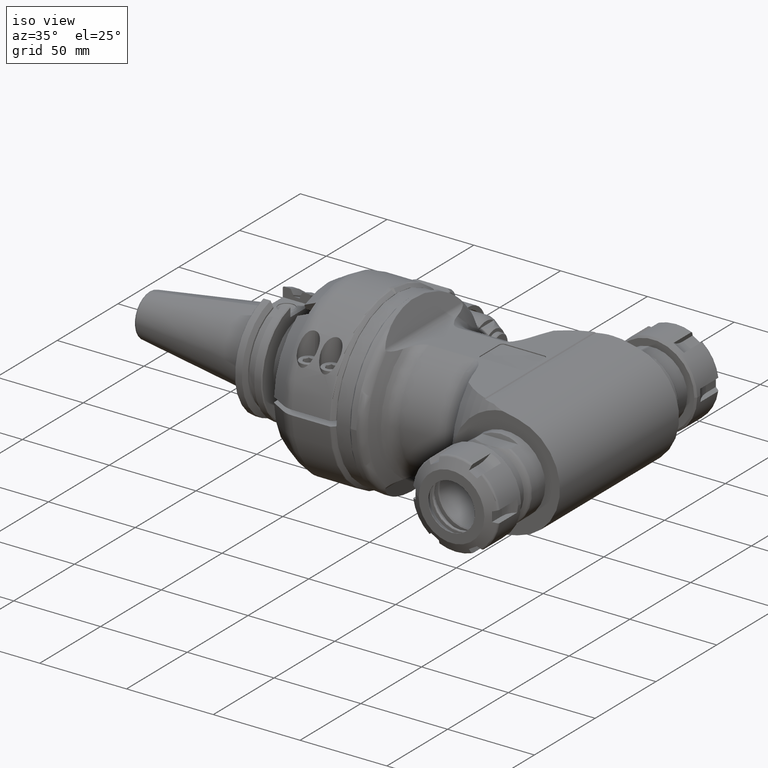
[diagram: clean part render]
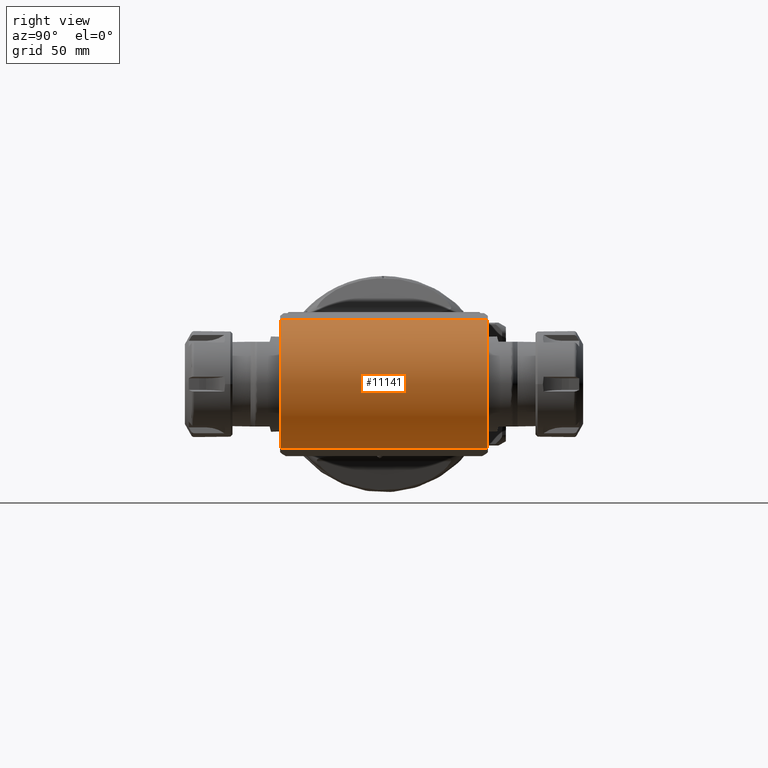
[diagram: tour spotlight — one face highlighted and labeled with its STEP entity id]
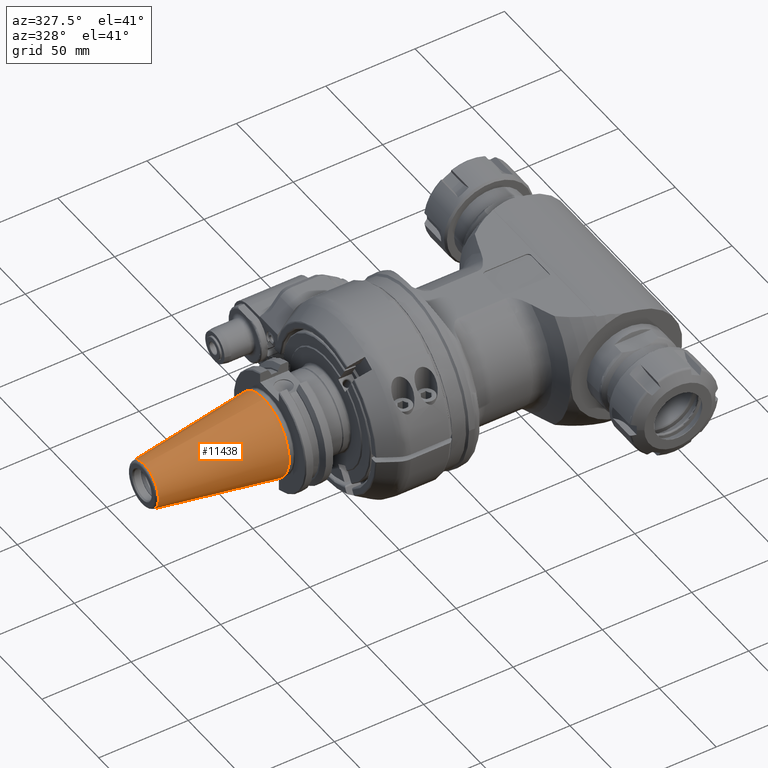
[diagram: tour spotlight — one face highlighted and labeled with its STEP entity id]
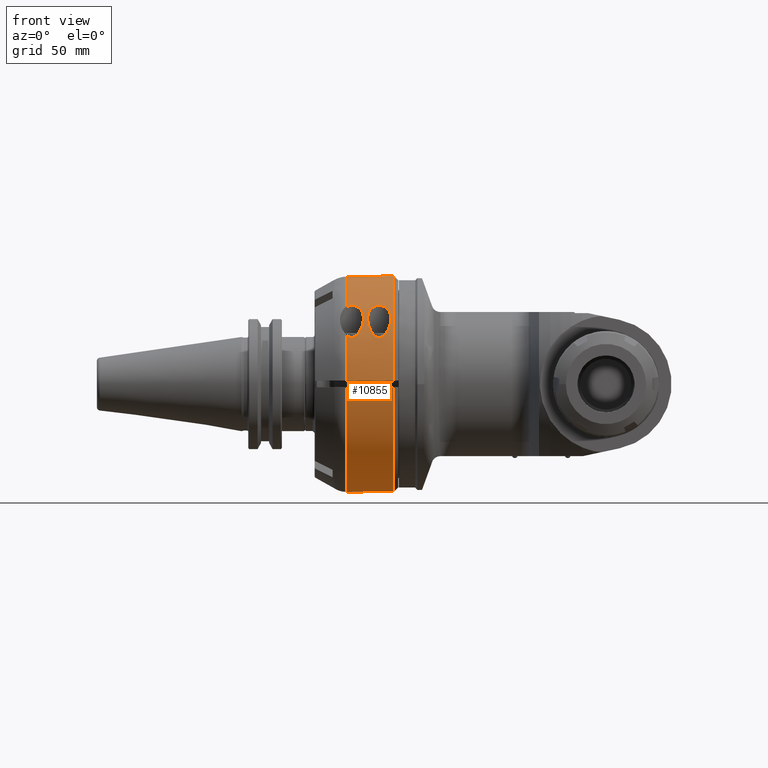
[diagram: tour spotlight — one face highlighted and labeled with its STEP entity id]
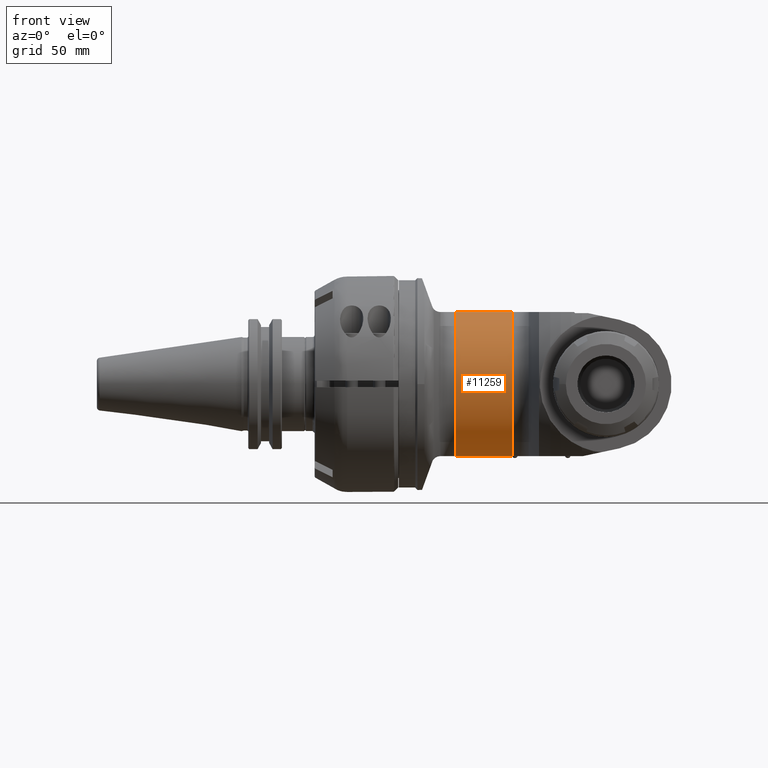
[diagram: tour spotlight — one face highlighted and labeled with its STEP entity id]
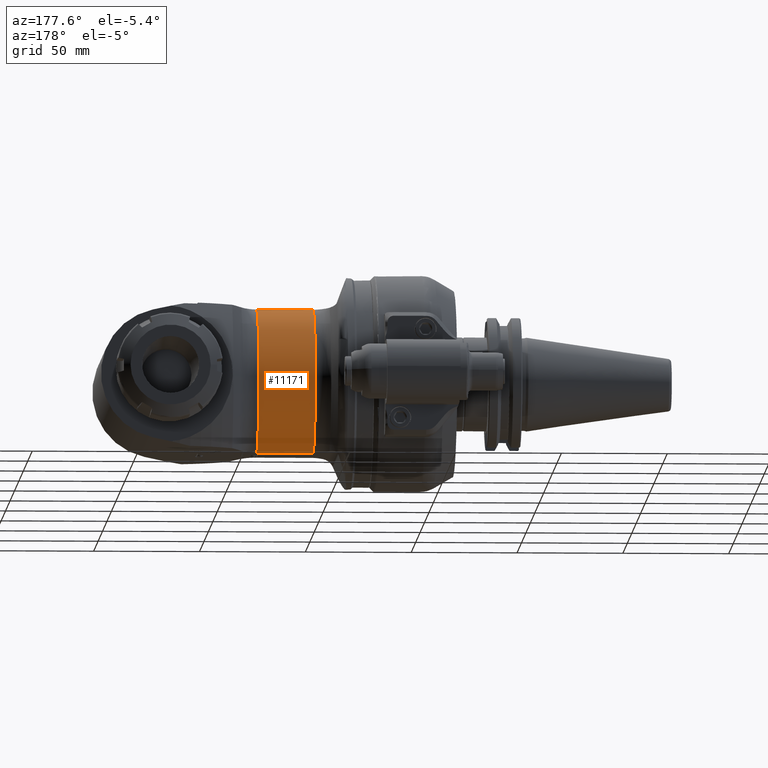
[diagram: tour spotlight — one face highlighted and labeled with its STEP entity id]
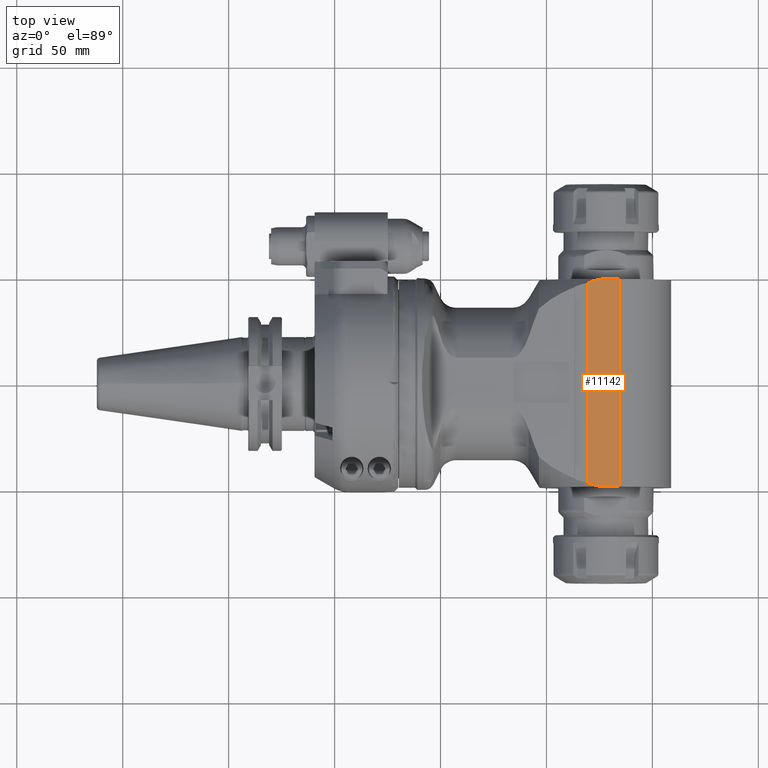
[diagram: tour spotlight — one face highlighted and labeled with its STEP entity id]
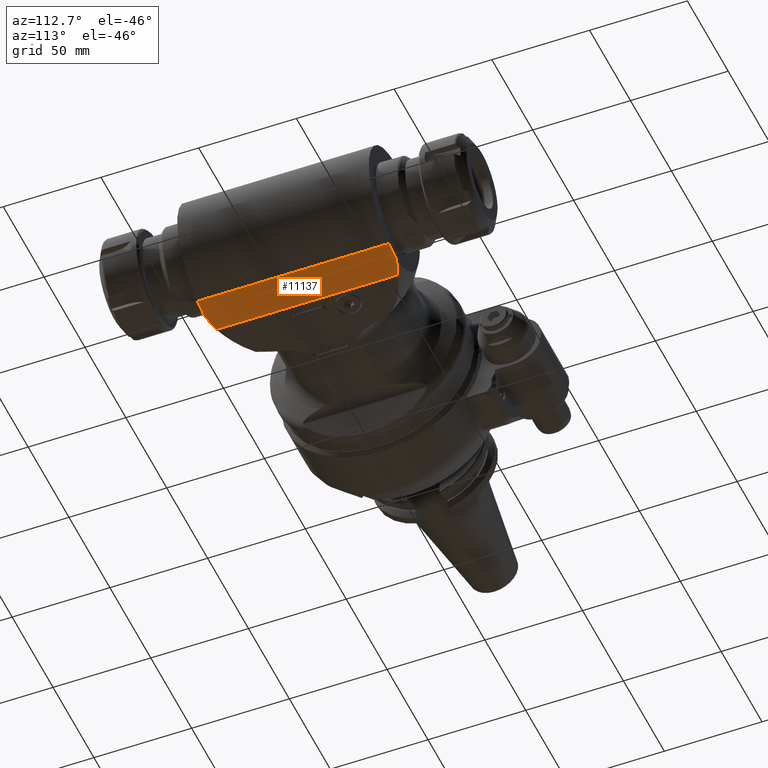
[diagram: tour spotlight — one face highlighted and labeled with its STEP entity id]
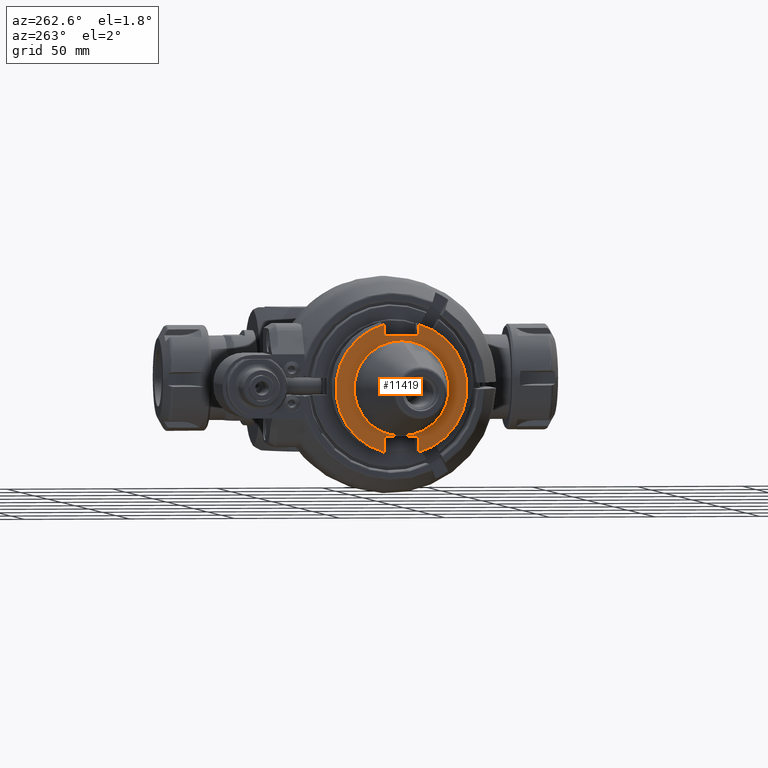
[diagram: tour spotlight — one face highlighted and labeled with its STEP entity id]
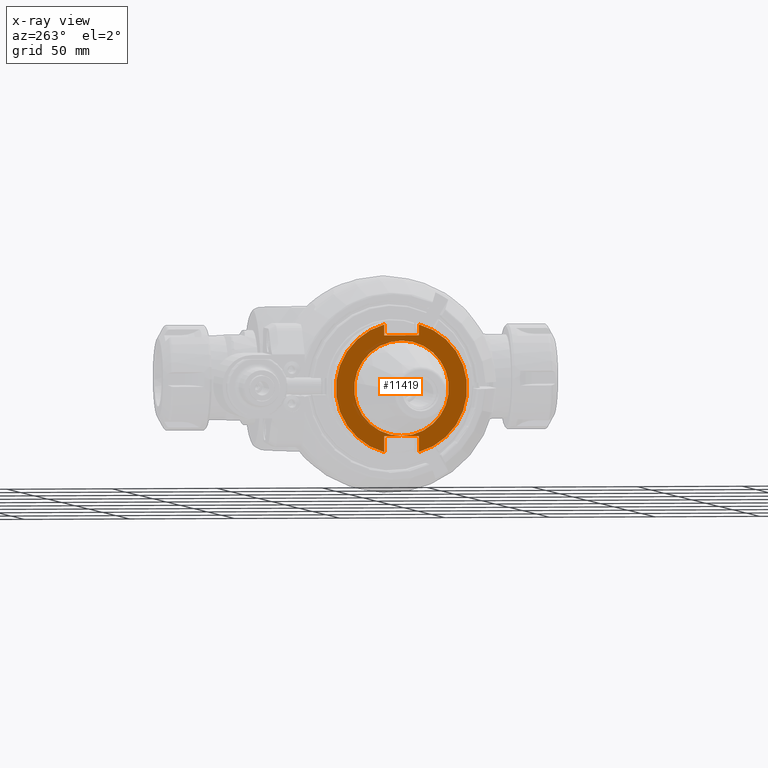
[diagram: x-ray of the same camera — body ghosted, this tour face saturated]
A machine part: a face-by-face anatomy tour. The part has 669 B-rep faces; the first image is the clean iso view, then the 8 largest visible faces are spotlighted one at a time (largest first), each with its STEP entity span.

Face 1 — right view, entity #11141. In plain terms, the highlighted cylindrical surface (partial cylindrical patch) has radius 31 mm, axis along (0, 1, 0).
Definition (entity closure, byte-faithful):
#982=LINE('',#21088,#1656);
#985=LINE('',#21253,#1659);
#1656=VECTOR('',#14554,98.);
#1659=VECTOR('',#14573,98.);
#2038=CYLINDRICAL_SURFACE('',#12184,31.);
#2576=FACE_OUTER_BOUND('',#3293,.T.);
#3293=EDGE_LOOP('',(#8794,#8795,#8796,#8797));
#4016=CIRCLE('',#12182,31.);
#4018=CIRCLE('',#12185,31.);
#4882=VERTEX_POINT('',#21085);
#4883=VERTEX_POINT('',#21087);
#4888=VERTEX_POINT('',#21116);
#4899=VERTEX_POINT('',#21252);
#6279=EDGE_CURVE('',#4883,#4882,#982,.T.);
#6287=EDGE_CURVE('',#4883,#4888,#4016,.T.);
#6299=EDGE_CURVE('',#4899,#4888,#985,.T.);
#6300=EDGE_CURVE('',#4899,#4882,#4018,.T.);
#8794=ORIENTED_EDGE('',*,*,#6299,.T.);
#8795=ORIENTED_EDGE('',*,*,#6287,.F.);
#8796=ORIENTED_EDGE('',*,*,#6279,.T.);
#8797=ORIENTED_EDGE('',*,*,#6300,.F.);
#11141=ADVANCED_FACE('',(#2576),#2038,.T.);
#12182=AXIS2_PLACEMENT_3D('',#21117,#14566,#14567);
#12184=AXIS2_PLACEMENT_3D('',#21251,#14571,#14572);
#12185=AXIS2_PLACEMENT_3D('',#21254,#14574,#14575);
#14554=DIRECTION('',(2.157729777165E-13,1.,5.289193119765E-14));
#14566=DIRECTION('center_axis',(0.,-1.,0.));
#14567=DIRECTION('ref_axis',(0.207911690817109,0.,-0.978147600733944));
#14571=DIRECTION('center_axis',(0.,1.,0.));
#14572=DIRECTION('ref_axis',(1.,0.,0.));
#14573=DIRECTION('',(0.,-1.,0.));
#14574=DIRECTION('center_axis',(0.,1.,0.));
#14575=DIRECTION('ref_axis',(0.207911690817799,0.,0.978147600733797));
#21085=CARTESIAN_POINT('',(284.5083594154,49.,-30.32257562275));
#21087=CARTESIAN_POINT('',(284.5083594153,-49.,-30.32257562275));
#21088=CARTESIAN_POINT('',(284.5083594153,-49.,-30.32257562275));
#21116=CARTESIAN_POINT('',(284.5083594154,-49.,30.32257562275));
#21117=CARTESIAN_POINT('Origin',(278.063097,-49.,0.));
#21251=CARTESIAN_POINT('Origin',(278.063097,49.,0.));
#21252=CARTESIAN_POINT('',(284.5083594154,49.,30.32257562275));
#21253=CARTESIAN_POINT('',(284.5083594154,49.,30.32257562275));
#21254=CARTESIAN_POINT('Origin',(278.063097,49.,0.));

Face 2 — auxiliary view, entity #11438. In plain terms, the highlighted conical surface has half-angle 8.297 deg.
Definition (entity closure, byte-faithful):
#591=CONICAL_SURFACE('',#12741,17.34203190906,0.144812411498922);
#1221=LINE('',#28803,#1895);
#1895=VECTOR('',#15923,17.34203190906);
#2873=FACE_OUTER_BOUND('',#3616,.T.);
#3616=EDGE_LOOP('',(#10299,#10300,#10301,#10302,#10303));
#4237=CIRCLE('',#12740,22.225);
#4238=CIRCLE('',#12742,12.45906381812);
#4239=CIRCLE('',#12743,12.45906381812);
#5329=VERTEX_POINT('',#28798);
#5330=VERTEX_POINT('',#28802);
#5331=VERTEX_POINT('',#28804);
#6998=EDGE_CURVE('',#5329,#5329,#4237,.T.);
#7000=EDGE_CURVE('',#5329,#5330,#1221,.T.);
#7001=EDGE_CURVE('',#5331,#5330,#4238,.T.);
#7002=EDGE_CURVE('',#5330,#5331,#4239,.T.);
#10299=ORIENTED_EDGE('',*,*,#6998,.F.);
#10300=ORIENTED_EDGE('',*,*,#7000,.T.);
#10301=ORIENTED_EDGE('',*,*,#7001,.F.);
#10302=ORIENTED_EDGE('',*,*,#7002,.F.);
#10303=ORIENTED_EDGE('',*,*,#7000,.F.);
#11438=ADVANCED_FACE('',(#2873),#591,.T.);
#12740=AXIS2_PLACEMENT_3D('',#28799,#15918,#15919);
#12741=AXIS2_PLACEMENT_3D('',#28801,#15921,#15922);
#12742=AXIS2_PLACEMENT_3D('',#28805,#15924,#15925);
#12743=AXIS2_PLACEMENT_3D('',#28806,#15926,#15927);
#15918=DIRECTION('center_axis',(1.,0.,0.));
#15919=DIRECTION('ref_axis',(0.,0.,1.));
#15921=DIRECTION('center_axis',(1.,0.,0.));
#15922=DIRECTION('ref_axis',(0.,0.,-1.));
#15923=DIRECTION('',(-0.98953299358046,1.76724869581176E-17,-0.144306807239621));
#15924=DIRECTION('center_axis',(-1.,0.,0.));
#15925=DIRECTION('ref_axis',(0.,0.,1.));
#15926=DIRECTION('center_axis',(-1.,0.,0.));
#15927=DIRECTION('ref_axis',(0.,0.,1.));
#28798=CARTESIAN_POINT('',(106.063097,2.72177751110521E-15,22.2250000000017));
#28799=CARTESIAN_POINT('Origin',(106.063097,0.,0.));
#28801=CARTESIAN_POINT('Origin',(72.57986689457,0.,0.));
#28802=CARTESIAN_POINT('',(39.09663678914,0.,12.45906381812));
#28803=CARTESIAN_POINT('',(72.57986689457,-2.12378638681416E-15,17.34203190906));
#28804=CARTESIAN_POINT('',(39.09663678914,1.52579526252333E-15,-12.45906381812));
#28805=CARTESIAN_POINT('Origin',(39.09663678914,0.,0.));
#28806=CARTESIAN_POINT('Origin',(39.09663678914,0.,0.));

Face 3 — front view, entity #10855. In plain terms, the highlighted cylindrical surface (partial cylindrical patch) has radius 51 mm, axis along (1, 0, 0).
Definition (entity closure, byte-faithful):
#51=B_SPLINE_CURVE_WITH_KNOTS('',3,(#16694,#16695,#16696,#16697,#16698,
#16699),.UNSPECIFIED.,.F.,.F.,(4,2,4),(-0.220144328878826,-0.201175489980687,
0.),.UNSPECIFIED.);
#52=B_SPLINE_CURVE_WITH_KNOTS('',3,(#16701,#16702,#16703,#16704,#16705,
#16706,#16707,#16708,#16709,#16710,#16711,#16712,#16713,#16714,#16715,#16716,
#16717,#16718,#16719,#16720,#16721,#16722,#16723,#16724,#16725,#16726),
 .UNSPECIFIED.,.F.,.F.,(4,2,2,2,2,2,2,2,2,2,2,2,4),(0.,0.201175489980686,
0.402350979961373,0.726790310303928,1.05122964064648,1.4474368744455,1.84364410824452,
2.06341028648597,2.17329337560669,2.28317646472742,2.39305955384814,2.50294264296886,
2.52975105248747),.UNSPECIFIED.);
#53=B_SPLINE_CURVE_WITH_KNOTS('',3,(#16737,#16738,#16739,#16740,#16741,
#16742,#16743,#16744,#16745,#16746,#16747,#16748,#16749,#16750,#16751,#16752,
#16753,#16754,#16755,#16756,#16757,#16758,#16759,#16760,#16761,#16762,#16763,
#16764,#16765,#16766,#16767,#16768,#16769,#16770,#16771,#16772,#16773,#16774),
 .UNSPECIFIED.,.T.,.F.,(4,2,2,2,2,2,2,2,2,2,2,2,2,2,2,2,2,2,4),(-4.56635292945483,
-4.45646984033411,-4.34658675121339,-4.12682057297194,-3.73061333917292,
-3.3344061053739,-3.00996677503134,-2.68552744468879,-2.4843519547081,-2.28317646472742,
-2.08200097474673,-1.88082548476604,-1.55638615442349,-1.23194682408093,
-0.835739590281914,-0.439532356482894,-0.219766178241447,-0.109883089120723,
0.),.UNSPECIFIED.);
#303=ELLIPSE('',#11620,144.249783362042,51.);
#304=ELLIPSE('',#11621,144.249783362042,51.);
#634=LINE('',#16377,#1308);
#644=LINE('',#16447,#1318);
#660=LINE('',#16627,#1334);
#661=LINE('',#16688,#1335);
#662=LINE('',#16690,#1336);
#663=LINE('',#16735,#1337);
#1308=VECTOR('',#12980,21.74606325158);
#1318=VECTOR('',#13028,21.74606856517);
#1334=VECTOR('',#13100,18.52539489666);
#1335=VECTOR('',#13113,0.6348591411298);
#1336=VECTOR('',#13114,18.52539489666);
#1337=VECTOR('',#13127,0.6348591411298);
#1959=CYLINDRICAL_SURFACE('',#11613,51.);
#2182=FACE_BOUND('',#2969,.T.);
#2290=FACE_OUTER_BOUND('',#2968,.T.);
#2968=EDGE_LOOP('',(#7325,#7326,#7327,#7328,#7329,#7330,#7331,#7332,#7333,
#7334,#7335,#7336,#7337,#7338,#7339,#7340,#7341,#7342));
#2969=EDGE_LOOP('',(#7343));
#3742=CIRCLE('',#11612,51.);
#3743=CIRCLE('',#11614,51.);
#3744=CIRCLE('',#11615,51.);
#3745=CIRCLE('',#11616,51.);
#3746=CIRCLE('',#11617,51.);
#3747=CIRCLE('',#11618,51.);
#3748=CIRCLE('',#11619,51.);
#3749=CIRCLE('',#11622,51.);
#4349=VERTEX_POINT('',#16367);
#4350=VERTEX_POINT('',#16376);
#4368=VERTEX_POINT('',#16437);
#4369=VERTEX_POINT('',#16446);
#4403=VERTEX_POINT('',#16624);
#4404=VERTEX_POINT('',#16626);
#4405=VERTEX_POINT('',#16680);
#4406=VERTEX_POINT('',#16681);
#4407=VERTEX_POINT('',#16683);
#4408=VERTEX_POINT('',#16685);
#4409=VERTEX_POINT('',#16687);
#4410=VERTEX_POINT('',#16689);
#4411=VERTEX_POINT('',#16691);
#4412=VERTEX_POINT('',#16693);
#4413=VERTEX_POINT('',#16700);
#4414=VERTEX_POINT('',#16728);
#4415=VERTEX_POINT('',#16730);
#4416=VERTEX_POINT('',#16732);
#4417=VERTEX_POINT('',#16736);
#5477=EDGE_CURVE('',#4350,#4349,#634,.T.);
#5504=EDGE_CURVE('',#4369,#4368,#644,.T.);
#5547=EDGE_CURVE('',#4404,#4403,#660,.T.);
#5549=EDGE_CURVE('',#4404,#4349,#3742,.T.);
#5550=EDGE_CURVE('',#4405,#4406,#3743,.T.);
#5551=EDGE_CURVE('',#4407,#4405,#3744,.T.);
#5552=EDGE_CURVE('',#4408,#4407,#3745,.T.);
#5553=EDGE_CURVE('',#4408,#4409,#661,.T.);
#5554=EDGE_CURVE('',#4410,#4409,#662,.T.);
#5555=EDGE_CURVE('',#4411,#4410,#3746,.T.);
#5556=EDGE_CURVE('',#4411,#4412,#51,.T.);
#5557=EDGE_CURVE('',#4412,#4413,#52,.T.);
#5558=EDGE_CURVE('',#4369,#4413,#3747,.T.);
#5559=EDGE_CURVE('',#4414,#4368,#3748,.T.);
#5560=EDGE_CURVE('',#4415,#4414,#303,.T.);
#5561=EDGE_CURVE('',#4416,#4415,#304,.T.);
#5562=EDGE_CURVE('',#4350,#4416,#3749,.T.);
#5563=EDGE_CURVE('',#4403,#4406,#663,.T.);
#5564=EDGE_CURVE('',#4417,#4417,#53,.T.);
#7325=ORIENTED_EDGE('',*,*,#5550,.F.);
#7326=ORIENTED_EDGE('',*,*,#5551,.F.);
#7327=ORIENTED_EDGE('',*,*,#5552,.F.);
#7328=ORIENTED_EDGE('',*,*,#5553,.T.);
#7329=ORIENTED_EDGE('',*,*,#5554,.F.);
#7330=ORIENTED_EDGE('',*,*,#5555,.F.);
#7331=ORIENTED_EDGE('',*,*,#5556,.T.);
#7332=ORIENTED_EDGE('',*,*,#5557,.T.);
#7333=ORIENTED_EDGE('',*,*,#5558,.F.);
#7334=ORIENTED_EDGE('',*,*,#5504,.T.);
#7335=ORIENTED_EDGE('',*,*,#5559,.F.);
#7336=ORIENTED_EDGE('',*,*,#5560,.F.);
#7337=ORIENTED_EDGE('',*,*,#5561,.F.);
#7338=ORIENTED_EDGE('',*,*,#5562,.F.);
#7339=ORIENTED_EDGE('',*,*,#5477,.T.);
#7340=ORIENTED_EDGE('',*,*,#5549,.F.);
#7341=ORIENTED_EDGE('',*,*,#5547,.T.);
#7342=ORIENTED_EDGE('',*,*,#5563,.T.);
#7343=ORIENTED_EDGE('',*,*,#5564,.T.);
#10855=ADVANCED_FACE('',(#2290,#2182),#1959,.T.);
#11612=AXIS2_PLACEMENT_3D('',#16678,#13103,#13104);
#11613=AXIS2_PLACEMENT_3D('',#16679,#13105,#13106);
#11614=AXIS2_PLACEMENT_3D('',#16682,#13107,#13108);
#11615=AXIS2_PLACEMENT_3D('',#16684,#13109,#13110);
#11616=AXIS2_PLACEMENT_3D('',#16686,#13111,#13112);
#11617=AXIS2_PLACEMENT_3D('',#16692,#13115,#13116);
#11618=AXIS2_PLACEMENT_3D('',#16727,#13117,#13118);
#11619=AXIS2_PLACEMENT_3D('',#16729,#13119,#13120);
#11620=AXIS2_PLACEMENT_3D('',#16731,#13121,#13122);
#11621=AXIS2_PLACEMENT_3D('',#16733,#13123,#13124);
#11622=AXIS2_PLACEMENT_3D('',#16734,#13125,#13126);
#12980=DIRECTION('',(-1.,-1.462479987387E-11,4.970251645951E-10));
#13028=DIRECTION('',(1.,3.747115976057E-11,1.273469652131E-9));
#13100=DIRECTION('',(1.,-3.835506555859E-14,-5.561484505995E-14));
#13103=DIRECTION('center_axis',(-1.,0.,0.));
#13104=DIRECTION('ref_axis',(0.,0.823529411764684,-0.567273574176089));
#13105=DIRECTION('center_axis',(1.,0.,0.));
#13106=DIRECTION('ref_axis',(0.,1.,1.4663902280623E-10));
#13107=DIRECTION('center_axis',(-1.,0.,0.));
#13108=DIRECTION('ref_axis',(0.,0.835809470037146,-0.54901960784313));
#13109=DIRECTION('center_axis',(-1.,0.,0.));
#13110=DIRECTION('ref_axis',(0.,0.835809470037146,0.54901960784313));
#13111=DIRECTION('center_axis',(-1.,0.,0.));
#13112=DIRECTION('ref_axis',(0.,0.823529411764684,0.567273574176089));
#13113=DIRECTION('',(-1.,-2.238426415332E-14,7.27488584983E-14));
#13114=DIRECTION('',(1.,-3.7971514903E-14,5.561484505995E-14));
#13115=DIRECTION('center_axis',(-1.,0.,0.));
#13116=DIRECTION('ref_axis',(0.,-0.694941301235422,0.719066469693323));
#13117=DIRECTION('center_axis',(-1.,0.,0.));
#13118=DIRECTION('ref_axis',(0.,-0.999567380468613,0.0294117647058804));
#13119=DIRECTION('center_axis',(1.,0.,0.));
#13120=DIRECTION('ref_axis',(0.,-0.0186331132687895,0.999826388474475));
#13121=DIRECTION('center_axis',(0.353553390593307,0.707106781186515,0.612372435695813));
#13122=DIRECTION('ref_axis',(0.935414346693472,-0.267261241912441,-0.23145502494317));
#13123=DIRECTION('center_axis',(0.353553390593307,-0.707106781186515,0.612372435695813));
#13124=DIRECTION('ref_axis',(-0.935414346693472,-0.267261241912441,0.23145502494317));
#13125=DIRECTION('center_axis',(1.,0.,0.));
#13126=DIRECTION('ref_axis',(0.,1.,0.));
#13127=DIRECTION('',(1.,-2.238426415332E-14,-1.119213207666E-14));
#16367=CARTESIAN_POINT('',(155.902842951806,-50.9779364044794,-1.49999998023586));
#16376=CARTESIAN_POINT('',(177.648883445127,-50.9779364043204,-1.49999998564002));
#16377=CARTESIAN_POINT('',(177.6488908532,-50.97793640474,-1.49999997128));
#16437=CARTESIAN_POINT('',(177.648883444621,-50.9779364042926,1.49999998660699));
#16446=CARTESIAN_POINT('',(155.9028429622,-50.9779364046901,1.49999997309681));
#16447=CARTESIAN_POINT('',(155.9028217902,-50.9779364055,1.499999945521));
#16624=CARTESIAN_POINT('',(174.4282378589,42.,-28.93095228298));
#16626=CARTESIAN_POINT('',(155.9028429622,42.,-28.93095228298));
#16627=CARTESIAN_POINT('',(155.9028429622,42.,-28.93095228298));
#16678=CARTESIAN_POINT('Origin',(155.9028429622,0.,0.));
#16679=CARTESIAN_POINT('Origin',(149.063097,0.,0.));
#16680=CARTESIAN_POINT('',(175.063097,42.62628297189,-28.));
#16681=CARTESIAN_POINT('',(175.063097,42.,-28.93095228298));
#16682=CARTESIAN_POINT('Origin',(175.063097,0.,0.));
#16683=CARTESIAN_POINT('',(175.063097,42.62628297189,28.));
#16684=CARTESIAN_POINT('Origin',(175.063097,0.,0.));
#16685=CARTESIAN_POINT('',(175.063097,42.,28.93095228298));
#16686=CARTESIAN_POINT('Origin',(175.063097,0.,0.));
#16687=CARTESIAN_POINT('',(174.4282378589,42.,28.93095228298));
#16688=CARTESIAN_POINT('',(175.063097,42.,28.93095228298));
#16689=CARTESIAN_POINT('',(155.9028429622,42.,28.93095228298));
#16690=CARTESIAN_POINT('',(155.9028429622,42.,28.93095228298));
#16691=CARTESIAN_POINT('',(155.9028429621,-35.44200636301,36.67238995435));
#16692=CARTESIAN_POINT('Origin',(155.9028429622,0.,0.));
#16693=CARTESIAN_POINT('',(158.063097,-35.0000002827,37.094473715245));
#16694=CARTESIAN_POINT('Ctrl Pts',(155.902842962091,-35.4420063630023,36.6723899543635));
#16695=CARTESIAN_POINT('Ctrl Pts',(155.960066241056,-35.4175664721268,36.6960098703003));
#16696=CARTESIAN_POINT('Ctrl Pts',(156.017968423946,-35.3939854762379,36.7187524665202));
#16697=CARTESIAN_POINT('Ctrl Pts',(156.697134117794,-35.1309085087689,36.9720249281091));
#16698=CARTESIAN_POINT('Ctrl Pts',(157.392512033398,-35.0000002827,37.094473715245));
#16699=CARTESIAN_POINT('Ctrl Pts',(158.063097,-35.0000002827,37.094473715245));
#16700=CARTESIAN_POINT('',(155.9028429622,-45.55799420242,22.92311419183));
#16701=CARTESIAN_POINT('Ctrl Pts',(158.063097,-35.0000002827,37.094473715245));
#16702=CARTESIAN_POINT('Ctrl Pts',(158.733681966602,-35.0000002827,37.094473715245));
#16703=CARTESIAN_POINT('Ctrl Pts',(159.429059882206,-35.1309085087689,36.9720249281091));
#16704=CARTESIAN_POINT('Ctrl Pts',(160.670350011584,-35.611726144206,36.509126684777));
#16705=CARTESIAN_POINT('Ctrl Pts',(161.217088242085,-35.9595700839234,36.1687494919773));
#16706=CARTESIAN_POINT('Ctrl Pts',(162.327305140609,-36.9109847334653,35.2033968586434));
#16707=CARTESIAN_POINT('Ctrl Pts',(162.82219848899,-37.6305186458188,34.4409934800642));
#16708=CARTESIAN_POINT('Ctrl Pts',(163.440260886259,-39.0967633186736,32.7670730175023));
#16709=CARTESIAN_POINT('Ctrl Pts',(163.563097,-39.8427250661917,31.8547771083538));
#16710=CARTESIAN_POINT('Ctrl Pts',(163.563097,-41.3026686740521,29.9471832487812));
#16711=CARTESIAN_POINT('Ctrl Pts',(163.381737543995,-42.1275628033903,28.778013547493));
#16712=CARTESIAN_POINT('Ctrl Pts',(162.665931905328,-43.6226298537565,26.456979520871));
#16713=CARTESIAN_POINT('Ctrl Pts',(162.139142507435,-44.2943690865695,25.3037695427295));
#16714=CARTESIAN_POINT('Ctrl Pts',(161.070663138843,-45.1302050030023,23.7624895598246));
#16715=CARTESIAN_POINT('Ctrl Pts',(160.588286549568,-45.4238805293447,23.1928172782629));
#16716=CARTESIAN_POINT('Ctrl Pts',(159.734148909462,-45.7488459255632,22.5411184273515));
#16717=CARTESIAN_POINT('Ctrl Pts',(159.428008510223,-45.8382767855729,22.3578474169696));
#16718=CARTESIAN_POINT('Ctrl Pts',(158.775593272837,-45.9637780827712,22.0986788135919));
#16719=CARTESIAN_POINT('Ctrl Pts',(158.429373963736,-46.0000002827,22.0227149550549));
#16720=CARTESIAN_POINT('Ctrl Pts',(157.696820036264,-46.0000002827,22.0227149550549));
#16721=CARTESIAN_POINT('Ctrl Pts',(157.350600727163,-45.9637780827712,22.0986788135918));
#16722=CARTESIAN_POINT('Ctrl Pts',(156.698185489777,-45.8382767855729,22.3578474169696));
#16723=CARTESIAN_POINT('Ctrl Pts',(156.392045090538,-45.7488459255632,22.5411184273514));
#16724=CARTESIAN_POINT('Ctrl Pts',(156.037870622005,-45.6140966286196,22.8113501597179));
#16725=CARTESIAN_POINT('Ctrl Pts',(155.969697861046,-45.5865477292915,22.8663661688304));
#16726=CARTESIAN_POINT('Ctrl Pts',(155.902842962179,-45.5579942024351,22.9231141918128));
#16727=CARTESIAN_POINT('Origin',(155.9028429622,0.,0.));
#16728=CARTESIAN_POINT('',(177.6488834376,-0.9502887767138,50.9911458122));
#16729=CARTESIAN_POINT('Origin',(177.6488834376,0.,0.));
#16730=CARTESIAN_POINT('',(175.7329699811,0.,51.));
#16731=CARTESIAN_POINT('Origin',(264.067561167047,0.,0.));
#16732=CARTESIAN_POINT('',(177.6488834376,0.9502887767115,50.9911458122));
#16733=CARTESIAN_POINT('Origin',(264.067561167129,0.,0.));
#16734=CARTESIAN_POINT('Origin',(177.6488834376,0.,0.));
#16735=CARTESIAN_POINT('',(174.4282378589,42.,-28.93095228298));
#16736=CARTESIAN_POINT('',(165.563097,-40.5000002827,30.99596711028));
#16737=CARTESIAN_POINT('Ctrl Pts',(171.063097,-46.0000002827,22.0227149550549));
#16738=CARTESIAN_POINT('Ctrl Pts',(170.696820036264,-46.0000002827,22.0227149550549));
#16739=CARTESIAN_POINT('Ctrl Pts',(170.350600727163,-45.9637780827712,22.0986788135919));
#16740=CARTESIAN_POINT('Ctrl Pts',(169.698185489777,-45.8382767855729,22.3578474169696));
#16741=CARTESIAN_POINT('Ctrl Pts',(169.392045090538,-45.7488459255632,22.5411184273515));
#16742=CARTESIAN_POINT('Ctrl Pts',(168.537907450432,-45.4238805293447,23.1928172782629));
#16743=CARTESIAN_POINT('Ctrl Pts',(168.055530861157,-45.1302050030023,23.7624895598246));
#16744=CARTESIAN_POINT('Ctrl Pts',(166.987051492565,-44.2943690865695,25.3037695427295));
#16745=CARTESIAN_POINT('Ctrl Pts',(166.460262094672,-43.6226298537565,26.456979520871));
#16746=CARTESIAN_POINT('Ctrl Pts',(165.744456456005,-42.1275628033903,28.778013547493));
#16747=CARTESIAN_POINT('Ctrl Pts',(165.563097,-41.3026686740521,29.9471832487812));
#16748=CARTESIAN_POINT('Ctrl Pts',(165.563097,-39.8427250661917,31.8547771083538));
#16749=CARTESIAN_POINT('Ctrl Pts',(165.685933113741,-39.0967633186736,32.7670730175023));
#16750=CARTESIAN_POINT('Ctrl Pts',(166.30399551101,-37.6305186458188,34.4409934800642));
#16751=CARTESIAN_POINT('Ctrl Pts',(166.798888859391,-36.9109847334653,35.2033968586434));
#16752=CARTESIAN_POINT('Ctrl Pts',(167.909105757915,-35.9595700839234,36.1687494919773));
#16753=CARTESIAN_POINT('Ctrl Pts',(168.455843988416,-35.611726144206,36.509126684777));
#16754=CARTESIAN_POINT('Ctrl Pts',(169.697134117794,-35.1309085087689,36.9720249281091));
#16755=CARTESIAN_POINT('Ctrl Pts',(170.392512033398,-35.0000002827,37.094473715245));
#16756=CARTESIAN_POINT('Ctrl Pts',(171.733681966602,-35.0000002827,37.094473715245));
#16757=CARTESIAN_POINT('Ctrl Pts',(172.429059882206,-35.1309085087689,36.9720249281091));
#16758=CARTESIAN_POINT('Ctrl Pts',(173.670350011584,-35.611726144206,36.509126684777));
#16759=CARTESIAN_POINT('Ctrl Pts',(174.217088242085,-35.9595700839234,36.1687494919773));
#16760=CARTESIAN_POINT('Ctrl Pts',(175.327305140609,-36.9109847334653,35.2033968586434));
#16761=CARTESIAN_POINT('Ctrl Pts',(175.82219848899,-37.6305186458188,34.4409934800642));
#16762=CARTESIAN_POINT('Ctrl Pts',(176.440260886259,-39.0967633186736,32.7670730175023));
#16763=CARTESIAN_POINT('Ctrl Pts',(176.563097,-39.8427250661916,31.8547771083538));
#16764=CARTESIAN_POINT('Ctrl Pts',(176.563097,-41.3026686740521,29.9471832487812));
#16765=CARTESIAN_POINT('Ctrl Pts',(176.381737543995,-42.1275628033903,28.778013547493));
#16766=CARTESIAN_POINT('Ctrl Pts',(175.665931905328,-43.6226298537565,26.456979520871));
#16767=CARTESIAN_POINT('Ctrl Pts',(175.139142507435,-44.2943690865695,25.3037695427295));
#16768=CARTESIAN_POINT('Ctrl Pts',(174.070663138843,-45.1302050030023,23.7624895598246));
#16769=CARTESIAN_POINT('Ctrl Pts',(173.588286549568,-45.4238805293447,23.1928172782629));
#16770=CARTESIAN_POINT('Ctrl Pts',(172.734148909462,-45.7488459255632,22.5411184273515));
#16771=CARTESIAN_POINT('Ctrl Pts',(172.428008510223,-45.8382767855729,22.3578474169696));
#16772=CARTESIAN_POINT('Ctrl Pts',(171.775593272837,-45.9637780827712,22.0986788135919));
#16773=CARTESIAN_POINT('Ctrl Pts',(171.429373963736,-46.0000002827,22.0227149550549));
#16774=CARTESIAN_POINT('Ctrl Pts',(171.063097,-46.0000002827,22.0227149550549));

Face 4 — front view, entity #11259. In plain terms, the highlighted cylindrical surface (partial cylindrical patch) has radius 36 mm, axis along (-1, 0, 0).
Definition (entity closure, byte-faithful):
#966=LINE('',#20756,#1640);
#974=LINE('',#20975,#1648);
#1640=VECTOR('',#14504,26.67897826015);
#1648=VECTOR('',#14532,26.67897826015);
#2056=CYLINDRICAL_SURFACE('',#12391,36.);
#2694=FACE_OUTER_BOUND('',#3419,.T.);
#3419=EDGE_LOOP('',(#9404,#9405,#9406,#9407));
#4008=CIRCLE('',#12168,36.);
#4092=CIRCLE('',#12390,36.);
#4822=VERTEX_POINT('',#20742);
#4823=VERTEX_POINT('',#20755);
#4850=VERTEX_POINT('',#20913);
#4859=VERTEX_POINT('',#20964);
#6215=EDGE_CURVE('',#4823,#4822,#966,.T.);
#6245=EDGE_CURVE('',#4850,#4822,#4008,.T.);
#6254=EDGE_CURVE('',#4850,#4859,#974,.T.);
#6572=EDGE_CURVE('',#4859,#4823,#4092,.T.);
#9404=ORIENTED_EDGE('',*,*,#6215,.T.);
#9405=ORIENTED_EDGE('',*,*,#6245,.F.);
#9406=ORIENTED_EDGE('',*,*,#6254,.T.);
#9407=ORIENTED_EDGE('',*,*,#6572,.T.);
#11259=ADVANCED_FACE('',(#2694),#2056,.T.);
#12168=AXIS2_PLACEMENT_3D('',#20926,#14527,#14528);
#12390=AXIS2_PLACEMENT_3D('',#27307,#15038,#15039);
#12391=AXIS2_PLACEMENT_3D('',#27308,#15040,#15041);
#14504=DIRECTION('',(-1.,0.,0.));
#14527=DIRECTION('center_axis',(-1.,0.,0.));
#14528=DIRECTION('ref_axis',(0.,-0.328671099061113,-0.944444444444437));
#14532=DIRECTION('',(1.,0.,0.));
#15038=DIRECTION('center_axis',(-1.,0.,0.));
#15039=DIRECTION('ref_axis',(0.,-0.328671099061113,-0.944444444444437));
#15040=DIRECTION('center_axis',(-1.,0.,0.));
#15041=DIRECTION('ref_axis',(0.,-1.,0.));
#20742=CARTESIAN_POINT('',(207.1879662404,-11.8321595662,34.));
#20755=CARTESIAN_POINT('',(233.8669445005,-11.8321595662,34.));
#20756=CARTESIAN_POINT('',(233.8669445005,-11.8321595662,34.));
#20913=CARTESIAN_POINT('',(207.1879662404,-11.8321595662,-34.));
#20926=CARTESIAN_POINT('Origin',(207.1879662404,0.,0.));
#20964=CARTESIAN_POINT('',(233.8669445005,-11.8321595662,-34.));
#20975=CARTESIAN_POINT('',(207.1879662404,-11.8321595662,-34.));
#27307=CARTESIAN_POINT('Origin',(233.8669445005,0.,0.));
#27308=CARTESIAN_POINT('Origin',(217.7095440971,0.,0.));

Face 5 — auxiliary view, entity #11171. In plain terms, the highlighted cylindrical surface (partial cylindrical patch) has radius 36 mm, axis along (-1, 0, 0).
Definition (entity closure, byte-faithful):
#968=LINE('',#20852,#1642);
#976=LINE('',#20999,#1650);
#1642=VECTOR('',#14506,26.67897826032);
#1650=VECTOR('',#14534,26.67897826015);
#2039=CYLINDRICAL_SURFACE('',#12223,36.);
#2606=FACE_OUTER_BOUND('',#3324,.T.);
#3324=EDGE_LOOP('',(#8973,#8974,#8975,#8976));
#4033=CIRCLE('',#12222,36.);
#4034=CIRCLE('',#12224,36.);
#4836=VERTEX_POINT('',#20840);
#4837=VERTEX_POINT('',#20851);
#4862=VERTEX_POINT('',#20985);
#4863=VERTEX_POINT('',#20998);
#6229=EDGE_CURVE('',#4837,#4836,#968,.T.);
#6258=EDGE_CURVE('',#4863,#4862,#976,.T.);
#6388=EDGE_CURVE('',#4836,#4863,#4033,.T.);
#6389=EDGE_CURVE('',#4837,#4862,#4034,.T.);
#8973=ORIENTED_EDGE('',*,*,#6229,.T.);
#8974=ORIENTED_EDGE('',*,*,#6388,.T.);
#8975=ORIENTED_EDGE('',*,*,#6258,.T.);
#8976=ORIENTED_EDGE('',*,*,#6389,.F.);
#11171=ADVANCED_FACE('',(#2606),#2039,.T.);
#12222=AXIS2_PLACEMENT_3D('',#25058,#14651,#14652);
#12223=AXIS2_PLACEMENT_3D('',#25059,#14653,#14654);
#12224=AXIS2_PLACEMENT_3D('',#25060,#14655,#14656);
#14506=DIRECTION('',(1.,0.,0.));
#14534=DIRECTION('',(-1.,0.,0.));
#14651=DIRECTION('center_axis',(-1.,0.,0.));
#14652=DIRECTION('ref_axis',(0.,0.328671099061113,0.944444444444437));
#14653=DIRECTION('center_axis',(-1.,0.,0.));
#14654=DIRECTION('ref_axis',(0.,1.,1.22464679914735E-16));
#14655=DIRECTION('center_axis',(-1.,0.,0.));
#14656=DIRECTION('ref_axis',(0.,0.328671099061113,0.944444444444437));
#20840=CARTESIAN_POINT('',(233.8669445007,11.8321595662,34.));
#20851=CARTESIAN_POINT('',(207.1879662404,11.8321595662,34.));
#20852=CARTESIAN_POINT('',(207.1879662404,11.8321595662,34.));
#20985=CARTESIAN_POINT('',(207.1879662404,11.8321595662,-34.));
#20998=CARTESIAN_POINT('',(233.8669445005,11.8321595662,-34.));
#20999=CARTESIAN_POINT('',(233.8669445005,11.8321595662,-34.));
#25058=CARTESIAN_POINT('Origin',(233.8669445005,0.,0.));
#25059=CARTESIAN_POINT('Origin',(217.7095440971,0.,0.));
#25060=CARTESIAN_POINT('Origin',(207.1879662404,0.,0.));

Face 6 — top view, entity #11142. In plain terms, the highlighted planar face has unit normal (-0.2079, 0, -0.9781).
Definition (entity closure, byte-faithful):
#164=B_SPLINE_CURVE_WITH_KNOTS('',3,(#21261,#21262,#21263,#21264),
 .UNSPECIFIED.,.F.,.F.,(4,4),(0.,1.),.UNSPECIFIED.);
#165=B_SPLINE_CURVE_WITH_KNOTS('',3,(#21268,#21269,#21270,#21271,#21272,
#21273),.UNSPECIFIED.,.F.,.F.,(4,2,4),(9.99999056105129E-7,0.00795610732810139,
0.0155769654346206),.UNSPECIFIED.);
#315=ELLIPSE('',#12187,1321.21671135135,153.398067958537);
#316=ELLIPSE('',#12188,93.2207177318639,12.6352055820894);
#317=ELLIPSE('',#12189,1321.21671135122,153.398067958523);
#984=LINE('',#21119,#1658);
#985=LINE('',#21253,#1659);
#986=LINE('',#21258,#1660);
#987=LINE('',#21266,#1661);
#1658=VECTOR('',#14568,8.87507655636703);
#1659=VECTOR('',#14573,98.);
#1660=VECTOR('',#14578,94.37971460824);
#1661=VECTOR('',#14581,8.79094146454385);
#2577=FACE_OUTER_BOUND('',#3294,.T.);
#3294=EDGE_LOOP('',(#8798,#8799,#8800,#8801,#8802,#8803,#8804,#8805,#8806));
#4888=VERTEX_POINT('',#21116);
#4889=VERTEX_POINT('',#21118);
#4899=VERTEX_POINT('',#21252);
#4900=VERTEX_POINT('',#21256);
#4901=VERTEX_POINT('',#21257);
#4902=VERTEX_POINT('',#21259);
#4903=VERTEX_POINT('',#21265);
#4904=VERTEX_POINT('',#21267);
#4905=VERTEX_POINT('',#21274);
#6288=EDGE_CURVE('',#4888,#4889,#984,.T.);
#6299=EDGE_CURVE('',#4899,#4888,#985,.T.);
#6301=EDGE_CURVE('',#4900,#4901,#986,.T.);
#6302=EDGE_CURVE('',#4901,#4902,#315,.T.);
#6303=EDGE_CURVE('',#4902,#4889,#164,.T.);
#6304=EDGE_CURVE('',#4903,#4899,#987,.T.);
#6305=EDGE_CURVE('',#4903,#4904,#165,.T.);
#6306=EDGE_CURVE('',#4905,#4904,#316,.T.);
#6307=EDGE_CURVE('',#4905,#4900,#317,.T.);
#8798=ORIENTED_EDGE('',*,*,#6301,.T.);
#8799=ORIENTED_EDGE('',*,*,#6302,.T.);
#8800=ORIENTED_EDGE('',*,*,#6303,.T.);
#8801=ORIENTED_EDGE('',*,*,#6288,.F.);
#8802=ORIENTED_EDGE('',*,*,#6299,.F.);
#8803=ORIENTED_EDGE('',*,*,#6304,.F.);
#8804=ORIENTED_EDGE('',*,*,#6305,.T.);
#8805=ORIENTED_EDGE('',*,*,#6306,.F.);
#8806=ORIENTED_EDGE('',*,*,#6307,.T.);
#10681=PLANE('',#12186);
#11142=ADVANCED_FACE('',(#2577),#10681,.F.);
#12186=AXIS2_PLACEMENT_3D('',#21255,#14576,#14577);
#12187=AXIS2_PLACEMENT_3D('',#21260,#14579,#14580);
#12188=AXIS2_PLACEMENT_3D('',#21275,#14582,#14583);
#12189=AXIS2_PLACEMENT_3D('',#21276,#14584,#14585);
#14568=DIRECTION('',(-0.978147600733797,2.80211619512899E-14,0.207911690817799));
#14573=DIRECTION('',(0.,-1.,0.));
#14576=DIRECTION('center_axis',(-0.207911690817799,0.,-0.978147600733797));
#14577=DIRECTION('ref_axis',(0.978147600733797,0.,-0.207911690817799));
#14578=DIRECTION('',(0.,-1.,0.));
#14579=DIRECTION('center_axis',(0.207911690817799,0.,0.978147600733797));
#14580=DIRECTION('ref_axis',(-0.978147600733797,-2.68897119471548E-16,0.207911690817799));
#14581=DIRECTION('',(0.978147600733817,0.,-0.207911690817704));
#14582=DIRECTION('center_axis',(-0.207911690817768,-1.3962542424478E-13,
-0.978147600733804));
#14583=DIRECTION('ref_axis',(0.961439281787442,0.184041855705174,-0.204360227991269));
#14584=DIRECTION('center_axis',(0.207911690817799,0.,0.978147600733797));
#14585=DIRECTION('ref_axis',(-0.978147600733797,-5.37794238943148E-17,0.207911690817799));
#21116=CARTESIAN_POINT('',(284.5083594154,-49.,30.32257562275));
#21118=CARTESIAN_POINT('',(275.8272245754,-49.,32.16780779572));
#21119=CARTESIAN_POINT('',(284.5083594154,-49.,30.32257562275));
#21252=CARTESIAN_POINT('',(284.5083594154,49.,30.32257562275));
#21253=CARTESIAN_POINT('',(284.5083594154,49.,30.32257562275));
#21255=CARTESIAN_POINT('Origin',(251.01662128,-70.8000024,37.44146432516));
#21256=CARTESIAN_POINT('',(269.5597530195,47.18985730412,33.5));
#21257=CARTESIAN_POINT('',(269.5597530195,-47.18985730412,33.5));
#21258=CARTESIAN_POINT('',(269.5597530195,47.18985730412,33.5));
#21259=CARTESIAN_POINT('',(271.7592494227,-47.98986308028,33.03248260714));
#21260=CARTESIAN_POINT('Origin',(1499.23378480247,7.105427357601E-14,-227.875284170737));
#21261=CARTESIAN_POINT('Ctrl Pts',(271.7592494227,-47.98986308028,33.03248260714));
#21262=CARTESIAN_POINT('Ctrl Pts',(273.1139632923,-48.33195312284,32.74452928498));
#21263=CARTESIAN_POINT('Ctrl Pts',(274.4699790139,-48.66856440992,32.45629924562));
#21264=CARTESIAN_POINT('Ctrl Pts',(275.8272245754,-49.,32.16780779572));
#21265=CARTESIAN_POINT('',(275.9095211136,49.,32.15031512652));
#21266=CARTESIAN_POINT('',(275.9095211136,49.,32.15031512652));
#21267=CARTESIAN_POINT('',(275.758679864402,48.9832568083272,32.1823776881045));
#21268=CARTESIAN_POINT('Ctrl Pts',(275.909521113603,49.0000000000012,32.1503151265321));
#21269=CARTESIAN_POINT('Ctrl Pts',(275.883580645482,49.0000027554922,32.1558289432439));
#21270=CARTESIAN_POINT('Ctrl Pts',(275.857454839524,48.9986832362961,32.1613821582872));
#21271=CARTESIAN_POINT('Ctrl Pts',(275.806543326483,48.9930346203221,32.1722037344487));
#21272=CARTESIAN_POINT('Ctrl Pts',(275.782342909154,48.9889156916685,32.1773476883891));
#21273=CARTESIAN_POINT('Ctrl Pts',(275.75867976447,48.9832570101839,32.1823774450613));
#21274=CARTESIAN_POINT('',(271.7592494227,47.98986308028,33.03248260714));
#21275=CARTESIAN_POINT('Origin',(308.660678048511,43.2077607629662,25.1888418177332));
#21276=CARTESIAN_POINT('Origin',(1499.23378480237,7.105427357601E-14,-227.875284170715));

Face 7 — auxiliary view, entity #11137. In plain terms, the highlighted planar face has unit normal (-0.2079, 0, 0.9781).
Definition (entity closure, byte-faithful):
#157=B_SPLINE_CURVE_WITH_KNOTS('',3,(#21072,#21073,#21074,#21075),
 .UNSPECIFIED.,.F.,.F.,(4,4),(0.,1.),.UNSPECIFIED.);
#158=B_SPLINE_CURVE_WITH_KNOTS('',3,(#21079,#21080,#21081,#21082,#21083,
#21084),.UNSPECIFIED.,.F.,.F.,(4,2,4),(1.00003792880088E-6,0.00727970565883919,
0.0154635490119573),.UNSPECIFIED.);
#159=B_SPLINE_CURVE_WITH_KNOTS('',3,(#21092,#21093,#21094,#21095),
 .UNSPECIFIED.,.F.,.F.,(4,4),(0.,1.),.UNSPECIFIED.);
#160=B_SPLINE_CURVE_WITH_KNOTS('',3,(#21096,#21097,#21098,#21099),
 .UNSPECIFIED.,.F.,.F.,(4,4),(0.,1.),.UNSPECIFIED.);
#314=ELLIPSE('',#12176,140.58501898583,23.7189281347882);
#973=LINE('',#20930,#1647);
#981=LINE('',#21086,#1655);
#982=LINE('',#21088,#1656);
#983=LINE('',#21090,#1657);
#1647=VECTOR('',#14531,92.6347024427);
#1655=VECTOR('',#14553,8.79094146454403);
#1656=VECTOR('',#14554,98.);
#1657=VECTOR('',#14555,8.87507655634284);
#2572=FACE_OUTER_BOUND('',#3288,.T.);
#3288=EDGE_LOOP('',(#8762,#8763,#8764,#8765,#8766,#8767,#8768,#8769,#8770));
#4851=VERTEX_POINT('',#20928);
#4852=VERTEX_POINT('',#20929);
#4879=VERTEX_POINT('',#21071);
#4880=VERTEX_POINT('',#21076);
#4881=VERTEX_POINT('',#21078);
#4882=VERTEX_POINT('',#21085);
#4883=VERTEX_POINT('',#21087);
#4884=VERTEX_POINT('',#21089);
#4885=VERTEX_POINT('',#21091);
#6246=EDGE_CURVE('',#4851,#4852,#973,.T.);
#6275=EDGE_CURVE('',#4852,#4879,#157,.T.);
#6276=EDGE_CURVE('',#4879,#4880,#314,.T.);
#6277=EDGE_CURVE('',#4880,#4881,#158,.T.);
#6278=EDGE_CURVE('',#4882,#4881,#981,.T.);
#6279=EDGE_CURVE('',#4883,#4882,#982,.T.);
#6280=EDGE_CURVE('',#4884,#4883,#983,.T.);
#6281=EDGE_CURVE('',#4885,#4884,#159,.T.);
#6282=EDGE_CURVE('',#4885,#4851,#160,.T.);
#8762=ORIENTED_EDGE('',*,*,#6246,.T.);
#8763=ORIENTED_EDGE('',*,*,#6275,.T.);
#8764=ORIENTED_EDGE('',*,*,#6276,.T.);
#8765=ORIENTED_EDGE('',*,*,#6277,.T.);
#8766=ORIENTED_EDGE('',*,*,#6278,.F.);
#8767=ORIENTED_EDGE('',*,*,#6279,.F.);
#8768=ORIENTED_EDGE('',*,*,#6280,.F.);
#8769=ORIENTED_EDGE('',*,*,#6281,.F.);
#8770=ORIENTED_EDGE('',*,*,#6282,.T.);
#10679=PLANE('',#12175);
#11137=ADVANCED_FACE('',(#2572),#10679,.F.);
#12175=AXIS2_PLACEMENT_3D('',#21070,#14549,#14550);
#12176=AXIS2_PLACEMENT_3D('',#21077,#14551,#14552);
#14531=DIRECTION('',(0.,1.,0.));
#14549=DIRECTION('center_axis',(-0.207911690817799,0.,0.978147600733797));
#14550=DIRECTION('ref_axis',(-0.978147600733797,0.,-0.207911690817799));
#14551=DIRECTION('center_axis',(0.207918231794108,-2.74288111326075E-5,
-0.978146209998931));
#14552=DIRECTION('ref_axis',(0.968146175143497,0.142632535205232,0.205788589226773));
#14553=DIRECTION('',(-0.978147600733797,0.,-0.207911690817799));
#14554=DIRECTION('',(2.157729777165E-13,1.,5.289193119765E-14));
#14555=DIRECTION('',(0.978147600733817,0.,0.207911690817704));
#20928=CARTESIAN_POINT('',(267.2074379648,-46.31735122135,-34.));
#20929=CARTESIAN_POINT('',(267.2074379648,46.31735122135,-34.));
#20930=CARTESIAN_POINT('',(267.2074379648,-46.31735122135,-34.));
#21070=CARTESIAN_POINT('Origin',(304.1477751026,-70.8000024,-26.14808895106));
#21071=CARTESIAN_POINT('',(271.7592494227,47.98986308028,-33.03248260714));
#21072=CARTESIAN_POINT('Ctrl Pts',(267.2074379648,46.31735122135,-34.));
#21073=CARTESIAN_POINT('Ctrl Pts',(268.7212545366,46.88467685953,-33.6782283545));
#21074=CARTESIAN_POINT('Ctrl Pts',(270.2386304167,47.44188110969,-33.35570015467));
#21075=CARTESIAN_POINT('Ctrl Pts',(271.7592494227,47.98986308028,-33.03248260714));
#21076=CARTESIAN_POINT('',(275.758682426857,48.9832576894709,-32.1823768360533));
#21077=CARTESIAN_POINT('Origin',(343.677956398623,37.9360510623953,-17.744904943795));
#21078=CARTESIAN_POINT('',(275.9095211136,49.,-32.15031512652));
#21079=CARTESIAN_POINT('Ctrl Pts',(275.758682420075,48.9832577574209,-32.1823768805903));
#21080=CARTESIAN_POINT('Ctrl Pts',(275.781790831057,48.9887837280713,-32.1774650362063));
#21081=CARTESIAN_POINT('Ctrl Pts',(275.805196145761,48.9928465103835,-32.1724900829947));
#21082=CARTESIAN_POINT('Ctrl Pts',(275.855843086218,48.9986660579906,-32.1617247434722));
#21083=CARTESIAN_POINT('Ctrl Pts',(275.882699981768,49.0000028379864,-32.1560161340902));
#21084=CARTESIAN_POINT('Ctrl Pts',(275.909521113602,49.000000000002,-32.1503151265275));
#21085=CARTESIAN_POINT('',(284.5083594154,49.,-30.32257562275));
#21086=CARTESIAN_POINT('',(284.5083594154,49.,-30.32257562275));
#21087=CARTESIAN_POINT('',(284.5083594153,-49.,-30.32257562275));
#21088=CARTESIAN_POINT('',(284.5083594153,-49.,-30.32257562275));
#21089=CARTESIAN_POINT('',(275.8272245754,-49.,-32.16780779572));
#21090=CARTESIAN_POINT('',(275.8272245754,-49.,-32.16780779572));
#21091=CARTESIAN_POINT('',(271.7592494227,-47.98986308027,-33.03248260714));
#21092=CARTESIAN_POINT('Ctrl Pts',(271.7592494227,-47.98986308027,-33.03248260714));
#21093=CARTESIAN_POINT('Ctrl Pts',(273.1139632923,-48.33195312284,-32.74452928498));
#21094=CARTESIAN_POINT('Ctrl Pts',(274.4699790139,-48.66856440992,-32.45629924562));
#21095=CARTESIAN_POINT('Ctrl Pts',(275.8272245754,-49.,-32.16780779572));
#21096=CARTESIAN_POINT('Ctrl Pts',(271.7592494227,-47.98986308027,-33.03248260714));
#21097=CARTESIAN_POINT('Ctrl Pts',(270.2386304167,-47.44188110969,-33.35570015467));
#21098=CARTESIAN_POINT('Ctrl Pts',(268.7212545366,-46.88467685953,-33.6782283545));
#21099=CARTESIAN_POINT('Ctrl Pts',(267.2074379648,-46.31735122135,-34.));

Face 8 — auxiliary view, entity #11419. An x-ray twin of the same camera follows (body ghosted, this face saturated) — the face is partly hidden behind the body. In plain terms, the highlighted planar face has unit normal (-1, 0, 0).
Definition (entity closure, byte-faithful):
#1188=LINE('',#28468,#1862);
#1193=LINE('',#28505,#1867);
#1200=LINE('',#28579,#1874);
#1203=LINE('',#28619,#1877);
#1204=LINE('',#28623,#1878);
#1205=LINE('',#28624,#1879);
#1862=VECTOR('',#15782,16.383);
#1867=VECTOR('',#15789,7.551284820588);
#1874=VECTOR('',#15808,5.138284820588);
#1877=VECTOR('',#15829,7.551284820588);
#1878=VECTOR('',#15832,5.138284820588);
#1879=VECTOR('',#15833,16.383);
#2245=FACE_BOUND('',#3596,.T.);
#2854=FACE_OUTER_BOUND('',#3595,.T.);
#3595=EDGE_LOOP('',(#10200,#10201,#10202,#10203,#10204,#10205,#10206,#10207));
#3596=EDGE_LOOP('',(#10208));
#4218=CIRCLE('',#12702,31.25);
#4219=CIRCLE('',#12704,31.25);
#4220=CIRCLE('',#12705,22.525);
#5281=VERTEX_POINT('',#28465);
#5282=VERTEX_POINT('',#28467);
#5288=VERTEX_POINT('',#28504);
#5298=VERTEX_POINT('',#28571);
#5299=VERTEX_POINT('',#28578);
#5302=VERTEX_POINT('',#28618);
#5303=VERTEX_POINT('',#28620);
#5304=VERTEX_POINT('',#28622);
#5305=VERTEX_POINT('',#28625);
#6925=EDGE_CURVE('',#5281,#5282,#1188,.T.);
#6932=EDGE_CURVE('',#5282,#5288,#1193,.T.);
#6946=EDGE_CURVE('',#5298,#5299,#1200,.T.);
#6954=EDGE_CURVE('',#5298,#5288,#4218,.T.);
#6955=EDGE_CURVE('',#5302,#5281,#1203,.T.);
#6956=EDGE_CURVE('',#5302,#5303,#4219,.T.);
#6957=EDGE_CURVE('',#5304,#5303,#1204,.T.);
#6958=EDGE_CURVE('',#5299,#5304,#1205,.T.);
#6959=EDGE_CURVE('',#5305,#5305,#4220,.T.);
#10200=ORIENTED_EDGE('',*,*,#6954,.T.);
#10201=ORIENTED_EDGE('',*,*,#6932,.F.);
#10202=ORIENTED_EDGE('',*,*,#6925,.F.);
#10203=ORIENTED_EDGE('',*,*,#6955,.F.);
#10204=ORIENTED_EDGE('',*,*,#6956,.T.);
#10205=ORIENTED_EDGE('',*,*,#6957,.F.);
#10206=ORIENTED_EDGE('',*,*,#6958,.F.);
#10207=ORIENTED_EDGE('',*,*,#6946,.F.);
#10208=ORIENTED_EDGE('',*,*,#6959,.T.);
#10793=PLANE('',#12703);
#11419=ADVANCED_FACE('',(#2854,#2245),#10793,.T.);
#12702=AXIS2_PLACEMENT_3D('',#28616,#15825,#15826);
#12703=AXIS2_PLACEMENT_3D('',#28617,#15827,#15828);
#12704=AXIS2_PLACEMENT_3D('',#28621,#15830,#15831);
#12705=AXIS2_PLACEMENT_3D('',#28626,#15834,#15835);
#15782=DIRECTION('',(0.,1.,0.));
#15789=DIRECTION('',(0.,-2.940487747458E-14,-1.));
#15808=DIRECTION('',(0.,3.94109487431E-14,-1.));
#15825=DIRECTION('center_axis',(-1.,0.,0.));
#15826=DIRECTION('ref_axis',(0.,0.262127999999995,0.965033114258782));
#15827=DIRECTION('center_axis',(-1.,0.,0.));
#15828=DIRECTION('ref_axis',(0.,0.,-1.));
#15829=DIRECTION('',(0.,-2.7758204336E-14,1.));
#15830=DIRECTION('center_axis',(-1.,0.,0.));
#15831=DIRECTION('ref_axis',(0.,-0.262127999999995,-0.965033114258782));
#15832=DIRECTION('',(0.,4.217662935665E-14,1.));
#15833=DIRECTION('',(0.,-1.,0.));
#15834=DIRECTION('center_axis',(1.,0.,0.));
#15835=DIRECTION('ref_axis',(0.,0.,1.));
#28465=CARTESIAN_POINT('',(109.238097,-8.1915,-22.606));
#28467=CARTESIAN_POINT('',(109.238097,8.1915,-22.606));
#28468=CARTESIAN_POINT('',(109.238097,-8.1915,-22.606));
#28504=CARTESIAN_POINT('',(109.238097,8.1915,-30.15728482059));
#28505=CARTESIAN_POINT('',(109.238097,8.1915,-22.606));
#28571=CARTESIAN_POINT('',(109.238097,8.1915,30.15728482059));
#28578=CARTESIAN_POINT('',(109.238097,8.1915,25.019));
#28579=CARTESIAN_POINT('',(109.238097,8.1915,30.15728482059));
#28616=CARTESIAN_POINT('Origin',(109.238097,0.,0.));
#28617=CARTESIAN_POINT('Origin',(109.238097,0.,-22.468145));
#28618=CARTESIAN_POINT('',(109.238097,-8.1915,-30.15728482059));
#28619=CARTESIAN_POINT('',(109.238097,-8.1915,-30.15728482059));
#28620=CARTESIAN_POINT('',(109.238097,-8.1915,30.15728482059));
#28621=CARTESIAN_POINT('Origin',(109.238097,0.,0.));
#28622=CARTESIAN_POINT('',(109.238097,-8.1915,25.019));
#28623=CARTESIAN_POINT('',(109.238097,-8.1915,25.019));
#28624=CARTESIAN_POINT('',(109.238097,8.1915,25.019));
#28625=CARTESIAN_POINT('',(109.238097,2.75851691507941E-15,-22.525));
#28626=CARTESIAN_POINT('Origin',(109.238097,0.,0.));